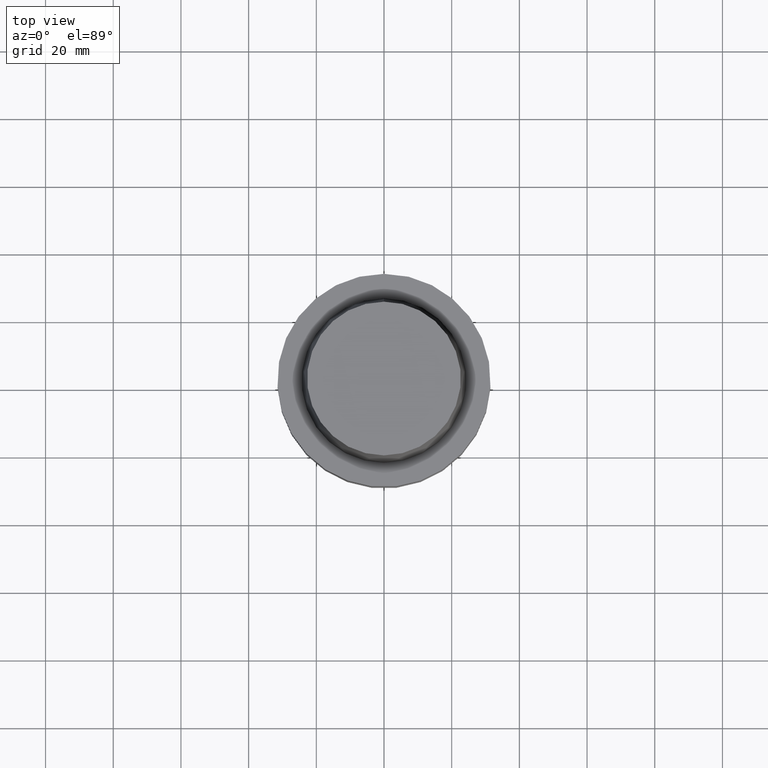
[diagram: clean part render]
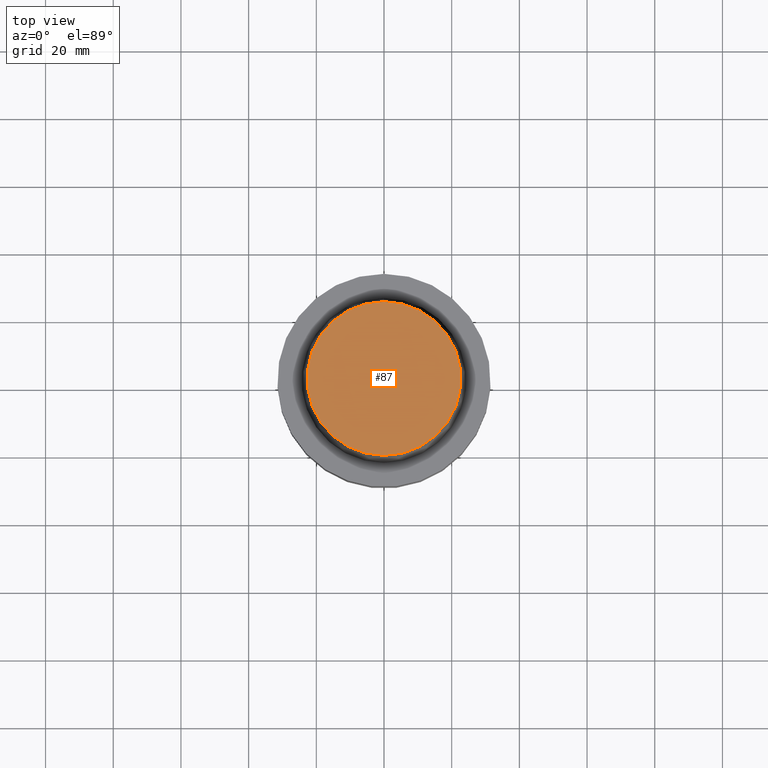
[diagram: same view with one face highlighted and labeled with its STEP entity id]
A machine part, top view. The second image highlights one B-rep face of the part: STEP entity #87.
In plain terms, the highlighted planar face has unit normal (-0, 0, 1).
Its self-contained STEP definition (entity closure, byte-faithful):
#87=ADVANCED_FACE('Unnamed[1]',(#227),#228,.T.);
#185=EDGE_CURVE('Unnamed[1]',#379,#379,#380,.T.);
#227=FACE_OUTER_BOUND('',#422,.T.);
#228=PLANE('',#423);
#379=VERTEX_POINT('',#611);
#380=CIRCLE('',#612,22.715);
#422=EDGE_LOOP('',(#643));
#423=AXIS2_PLACEMENT_3D('',#644,#645,#646);
#611=CARTESIAN_POINT('',(-1.95943487863576E-015,22.715,32.0));
#612=AXIS2_PLACEMENT_3D('',#810,#811,#812);
#643=ORIENTED_EDGE('',*,*,#185,.T.);
#644=CARTESIAN_POINT('',(-1.95943487863576E-015,11.3575,32.0));
#645=DIRECTION('',(-6.12323399573677E-017,9.72362339746437E-016,1.0));
#646=DIRECTION('',(5.47128686183263E-032,1.0,-9.72362339746437E-016));
#810=CARTESIAN_POINT('',(-1.95943487863576E-015,-3.91886975727153E-015,32.0));
#811=DIRECTION('',(-6.12323399573676E-017,-1.22464679914735E-016,1.0));
#812=DIRECTION('',(-1.23259516440783E-032,1.0,1.22464679914735E-016));